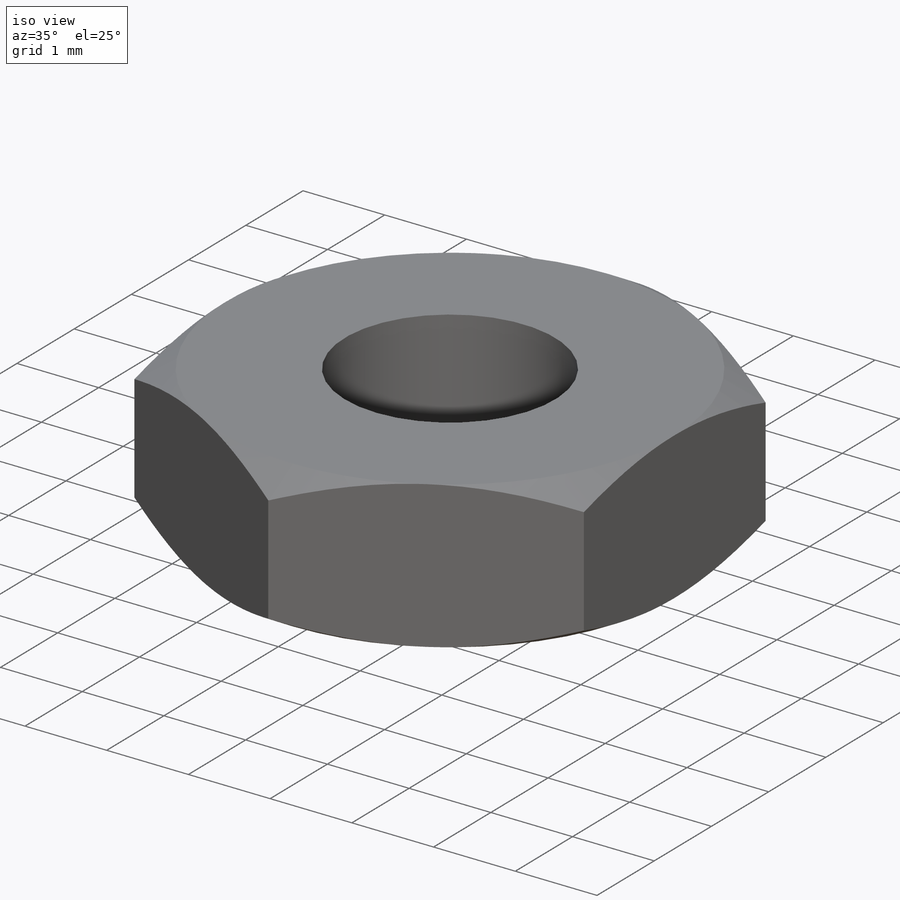
[diagram: iso view]
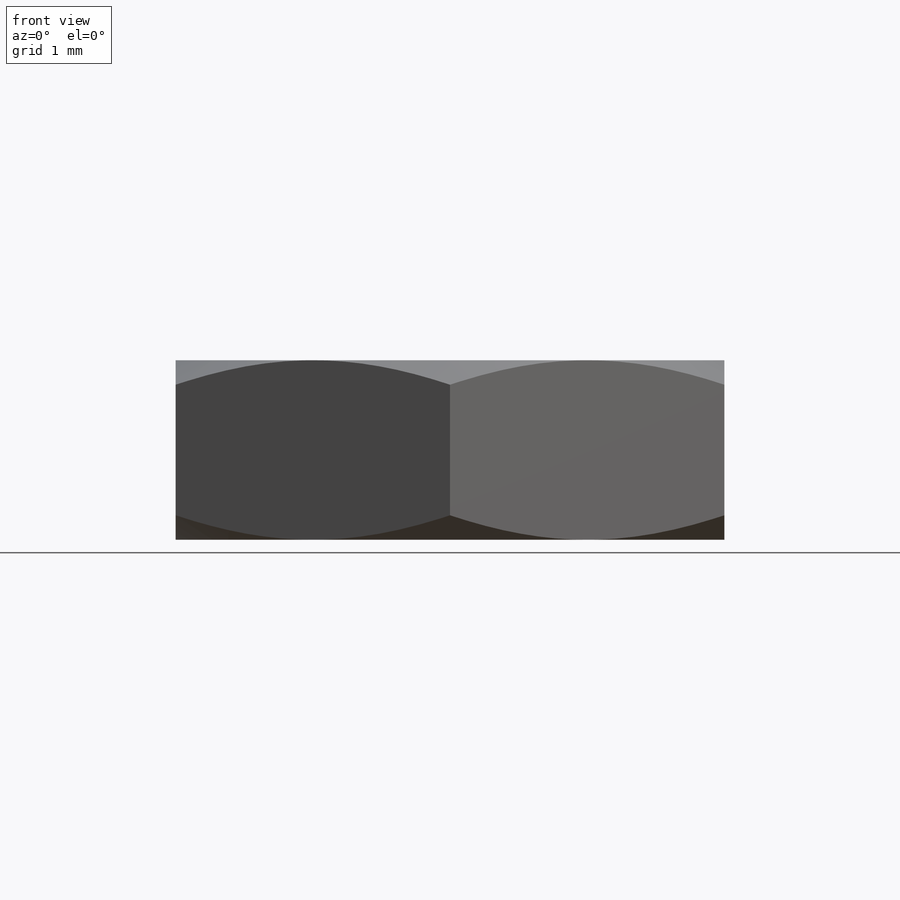
[diagram: front view]
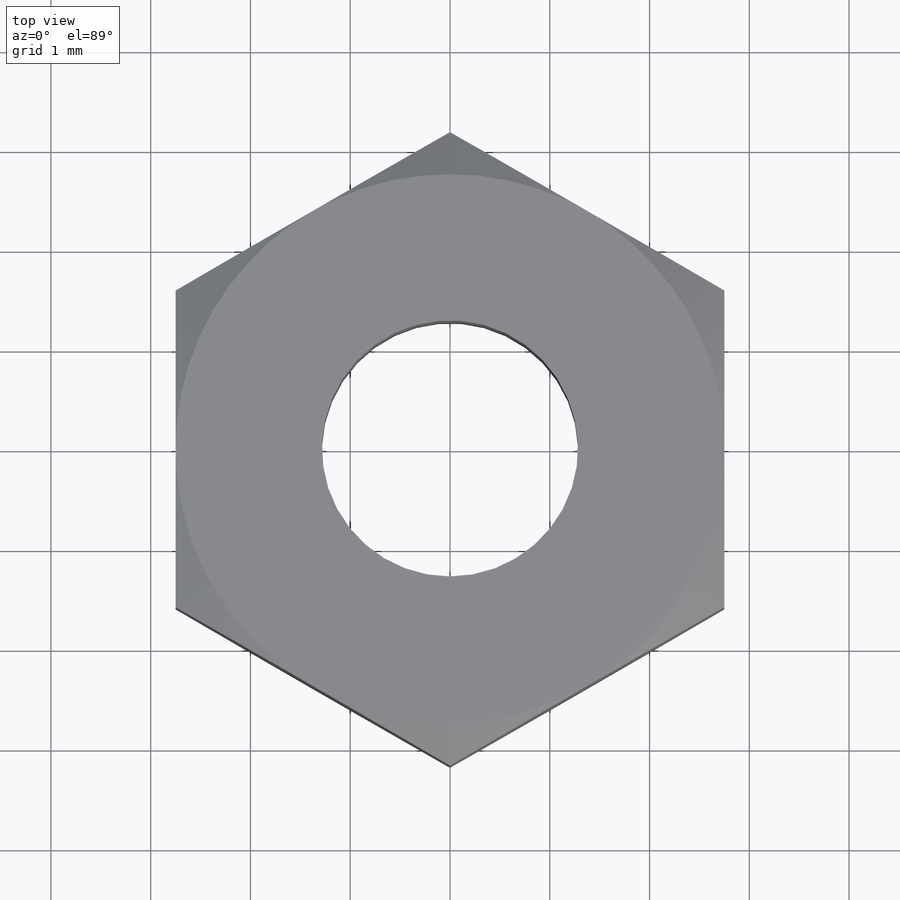
[diagram: top view]
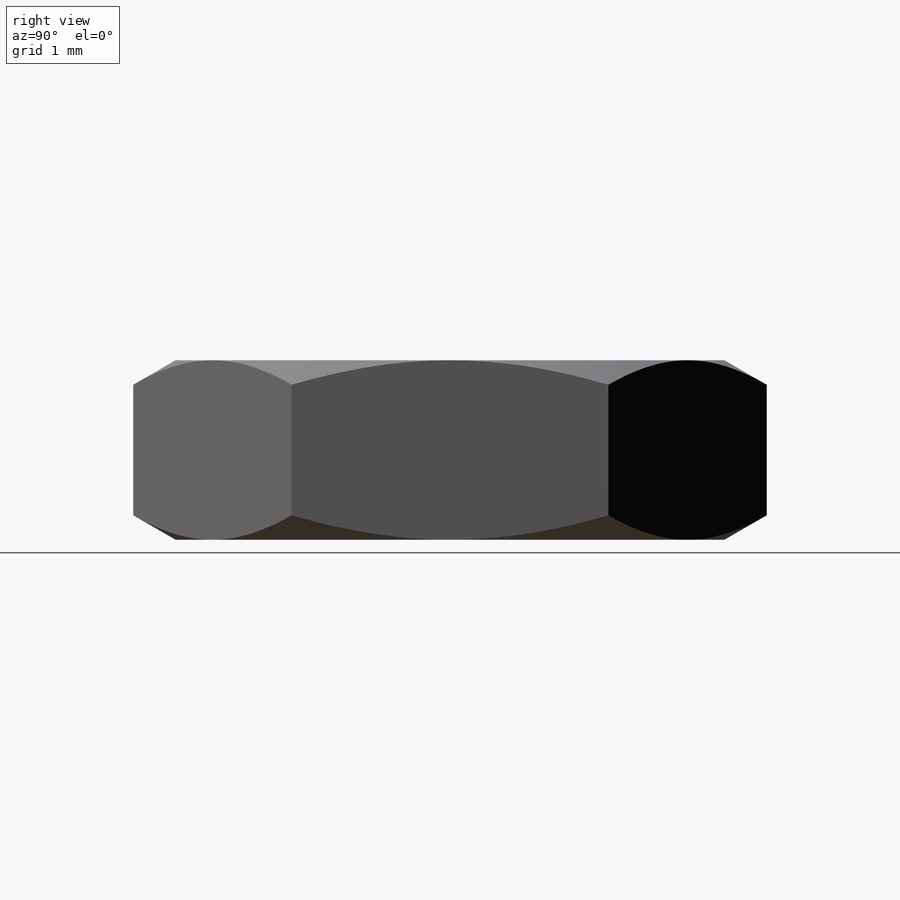
[diagram: right view]
SOLIDWORKS PART (.sldprt)
format: sldprt  version: not decoded by parser v0  size: 375,808 bytes
history: native  units: mm
features: sketch x4, plane x3, cut_revolve x2, material x1, extrude x1, cut_extrude x1, thread x1 (+8 scaffold rows collapsed)
feature tree (21):
  scaffold x8  (default folders/planes/origin — collapsed)
  material  "材质 <未指定>"
  plane  "前视基准面"
  plane  "上视基准面"
  plane  "右视基准面"
  sketch  "草图1"  dims[D1=4.0mm D2=~4.618802mm]
  extrude  "凸台-拉伸1"  Depth=1.6mm
  sketch  "草图4"  dims[D1=1.567mm]
  cut_extrude  "切除-拉伸1"  [1 undecoded]
  thread  "装饰螺纹线1"  Diameter=2mm  [1 undecoded]
  sketch  "草图2"  dims[c1.D1=~0.270829mm c2.D1=30.0deg c2.D2=4.0mm]
  cut_revolve  "切除-旋转1"  Angle=360deg
  sketch  "草图3"  dims[c1.D1=~0.407294mm c2.D1=30.0deg c2.D2=4.0mm]
  cut_revolve  "切除-旋转2"  Angle=360deg
decode coverage: 8 of 9 modeling features carry decoded parameters
note: ~ marks probable driven/reference dimensions
note: 2 parameter values undecoded
note: suppression state not decoded; provenance and decode notes live in map.json
